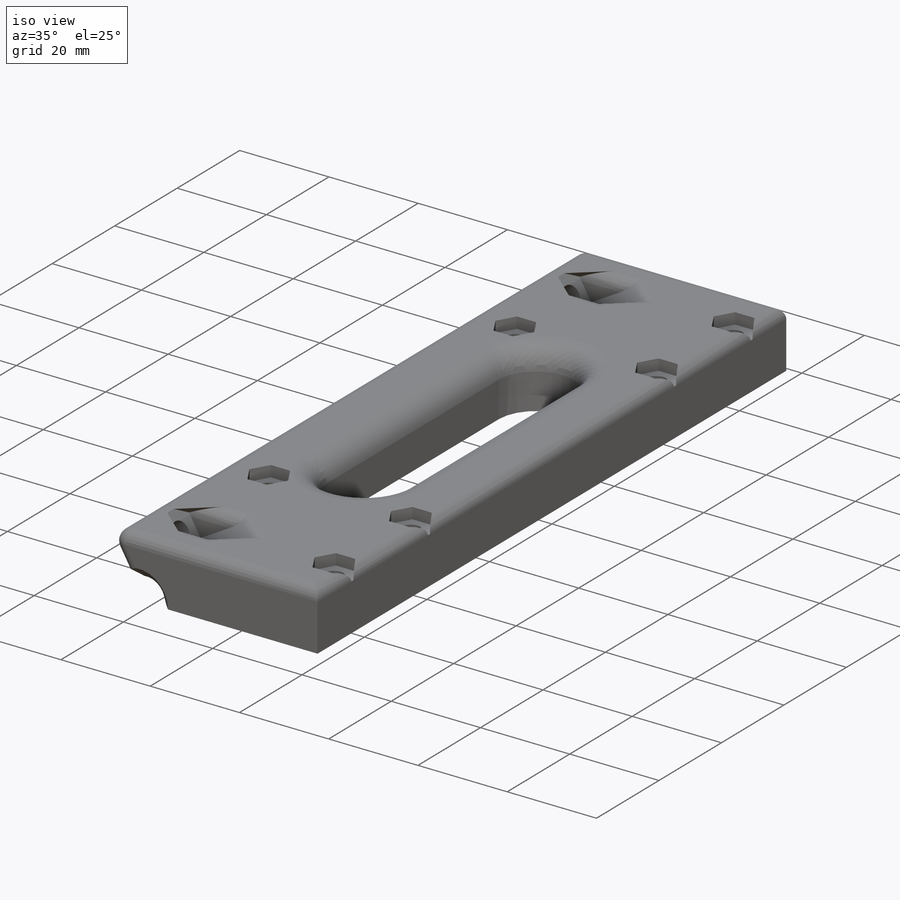
[diagram: iso view]
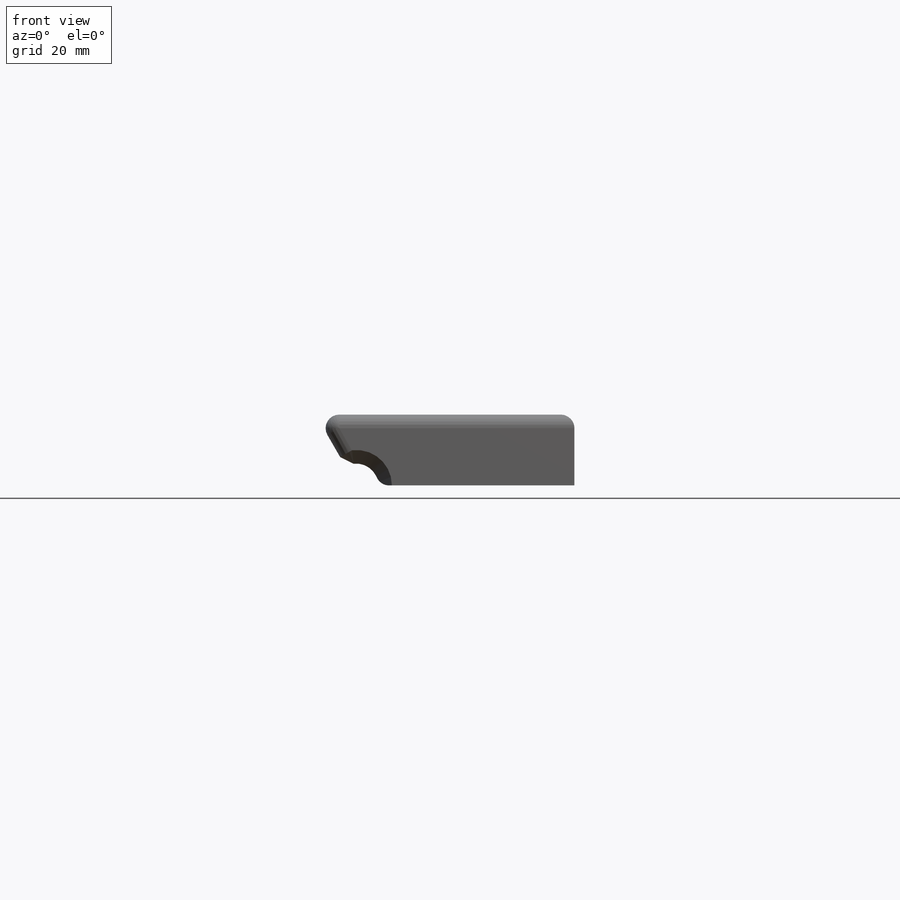
[diagram: front view]
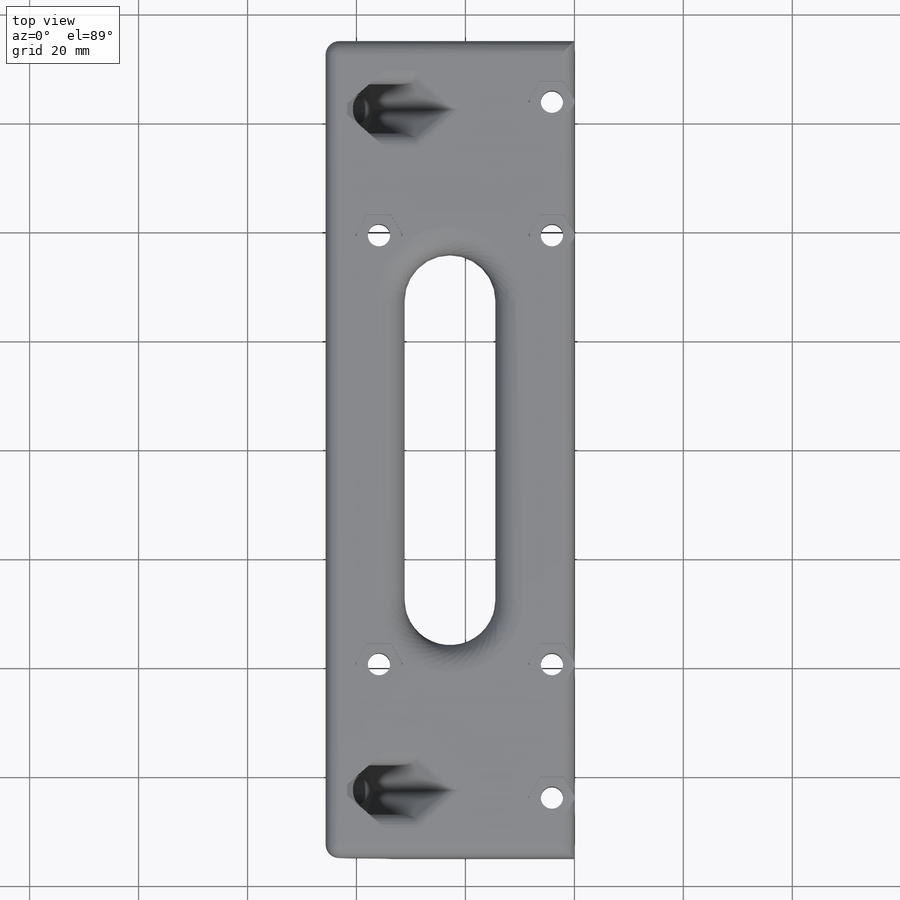
[diagram: top view]
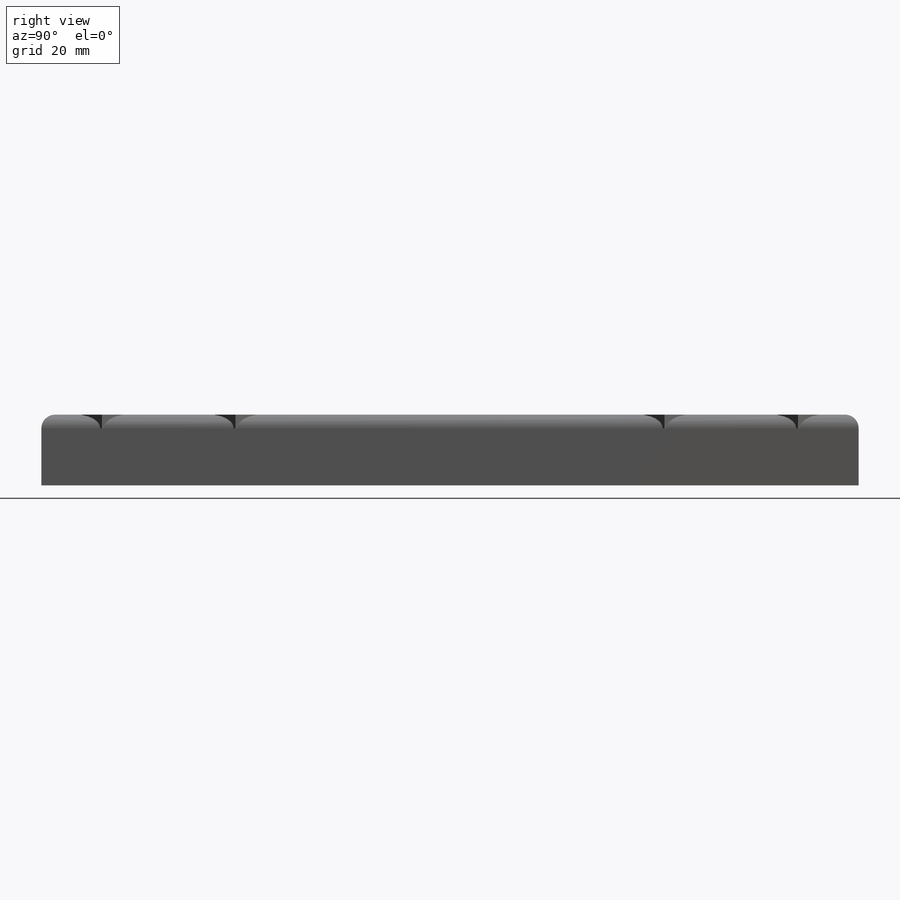
[diagram: right view]
SOLIDWORKS PART (.sldprt)
format: sldprt  version: not decoded by parser v0  size: 562,688 bytes
history: native  units: mm
features: sketch x9, cut_extrude x7, fillet x4, extrude x2, material x1, plane x1, chamfer x1 (+13 scaffold rows collapsed)
feature tree (38):
  scaffold x13  (default folders/planes/origin — collapsed)
  material  "Material <not specified>"
  sketch  "Sketch1"  dims[c1.D1=150.0mm c1.D2=40.0mm c1.D3=~80.207859mm c1.D4=~69.792141mm c2.D1=75.0mm c2.D3=75.0mm]
  extrude  "Boss-Extrude1"  Depth=13mm
  sketch  "Sketch2"
  extrude  "Boss-Extrude2"  Depth=7.5mm
  sketch  "Sketch3"
  cut_extrude  "Cut-Extrude1"  [1 undecoded]
  sketch  "Sketch4"  dims[c1.D1=12.5mm c2.D1=150.0deg c2.D2=12.5mm c3.D2=30.0deg c3.D3=12.5mm c4.D3=30.0deg c4.D1=12.5mm]
  cut_extrude  "Cut-Extrude2"  [1 undecoded]
  plane  "Side Bracket Plane"  Offset=40mm
  sketch  "Sketch10"  dims[D1=9.0mm D2=9.0mm]
  cut_extrude  "Cut-Extrude4"  Depth=35mm
  sketch  "Sketch11"  dims[c1.D4=4.1mm c1.D5=4.1mm c1.D7=4.1mm c1.D8=4.1mm c2.D5=4.1mm c2.D1=11.125mm c2.D2=31.75mm c2.D3=15.875mm c2.D6=24.5mm c3.D5=~127.750023mm]
  cut_extrude  "Cut-Extrude5"  [1 undecoded]
  fillet  "Fillet1"  Radius=2.5mm
  sketch  "Sketch13"  dims[D1=8.0mm]
  cut_extrude  "Cut-Extrude6"  [1 undecoded]
  chamfer  "Chamfer1"  Distance=2.5mm Angle=45deg
  fillet  "Fillet2"  Radius=2.5mm
  fillet  "Fillet5"  Radius=2.5mm
  sketch  "Sketch14"  dims[c1.D1=~7.843338mm c1.D2=~7.843338mm c2.D1=45.0mm c2.D2=45.0mm c2.D3=12.0mm c2.D4=12.0mm]
  cut_extrude  "Cut-Extrude7"  [1 undecoded]
  fillet  "Fillet6"  Radius=5mm
  sketch  "Sketch15"  dims[D1=7.5mm D2=7.5mm D3=7.5mm D4=7.5mm D5=7.5mm D6=7.5mm]
  cut_extrude  "Cut-Extrude8"  Depth=2.5mm
decode coverage: 16 of 23 modeling features carry decoded parameters
note: ~ marks probable driven/reference dimensions
note: 5 parameter values undecoded
summary: no parameter record found for 5 features
note: suppression state not decoded; provenance and decode notes live in map.json
